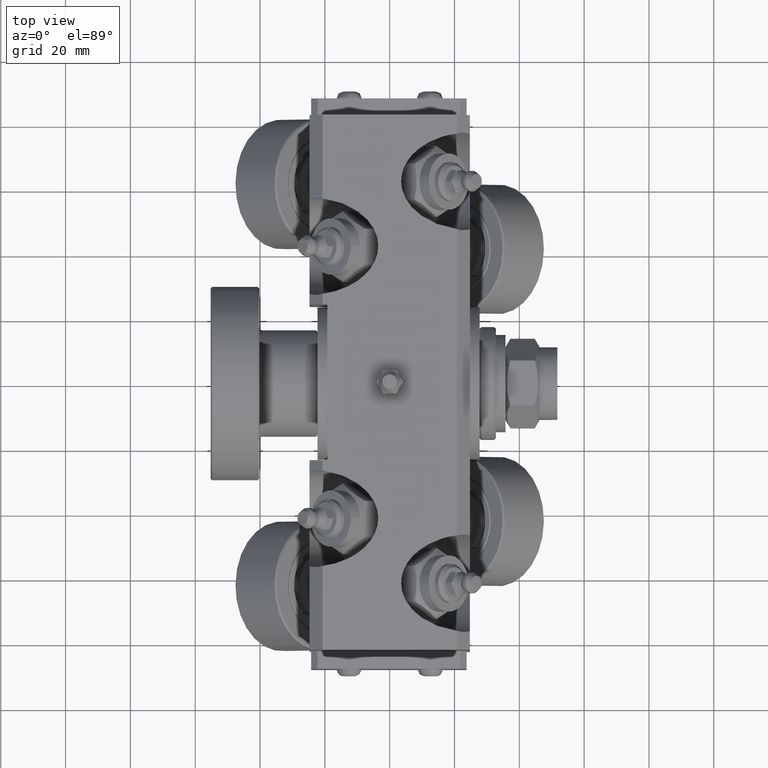
[diagram: clean part render]
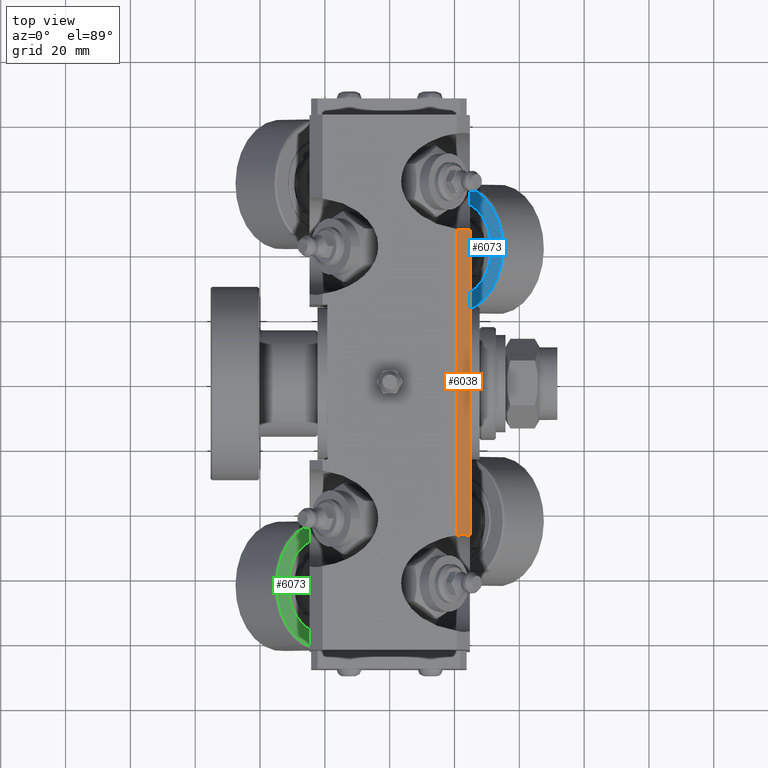
[diagram: same view with three faces highlighted in distinct colors, each labeled with its STEP entity id]
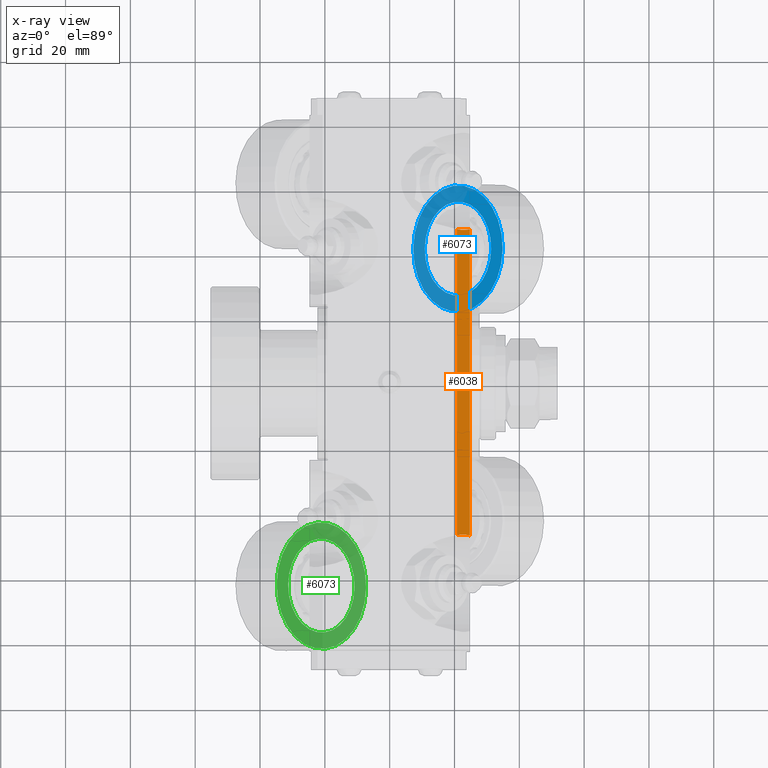
[diagram: x-ray of the same camera — body ghosted, the three highlighted faces saturated]
A machine part, top view with three faces highlighted in distinct colors.
The next image is the same camera in x-ray (body ghosted, the three faces saturated) — at least one of them is partly hidden behind the body in this view.
Their STEP definitions:

[orange] entity #6038 — the highlighted planar face has unit normal (0.7071, 0, 0.7071).
#529=PLANE('',#6890);
#716=FACE_OUTER_BOUND('',#1071,.T.);
#1071=EDGE_LOOP('',(#4478,#4479,#4480,#4481));
#1478=CIRCLE('',#6874,15.);
#1483=CIRCLE('',#6882,15.);
#1965=LINE('',#10443,#2315);
#1974=LINE('',#10480,#2324);
#2315=VECTOR('',#7842,10.);
#2324=VECTOR('',#7883,10.);
#2708=VERTEX_POINT('',#10440);
#2709=VERTEX_POINT('',#10442);
#2714=VERTEX_POINT('',#10455);
#2718=VERTEX_POINT('',#10466);
#3368=EDGE_CURVE('',#2709,#2708,#1965,.T.);
#3375=EDGE_CURVE('',#2708,#2714,#1478,.T.);
#3383=EDGE_CURVE('',#2718,#2709,#1483,.T.);
#3387=EDGE_CURVE('',#2714,#2718,#1974,.T.);
#4478=ORIENTED_EDGE('',*,*,#3375,.T.);
#4479=ORIENTED_EDGE('',*,*,#3387,.T.);
#4480=ORIENTED_EDGE('',*,*,#3383,.T.);
#4481=ORIENTED_EDGE('',*,*,#3368,.T.);
#6038=ADVANCED_FACE('',(#716),#529,.T.);
#6874=AXIS2_PLACEMENT_3D('',#10458,#7856,#7857);
#6882=AXIS2_PLACEMENT_3D('',#10472,#7874,#7875);
#6890=AXIS2_PLACEMENT_3D('',#10490,#7898,#7899);
#7842=DIRECTION('',(0.,-1.,0.));
#7856=DIRECTION('center_axis',(-0.707106781186548,0.,-0.707106781186547));
#7857=DIRECTION('ref_axis',(0.707106781186547,0.,-0.707106781186548));
#7874=DIRECTION('center_axis',(-0.707106781186548,0.,-0.707106781186547));
#7875=DIRECTION('ref_axis',(0.707106781186547,0.,-0.707106781186548));
#7883=DIRECTION('',(0.,1.,0.));
#7898=DIRECTION('center_axis',(0.707106781186548,0.,0.707106781186547));
#7899=DIRECTION('ref_axis',(0.707106781186547,0.,-0.707106781186548));
#10440=CARTESIAN_POINT('',(20.714,-47.2739906288228,24.75));
#10442=CARTESIAN_POINT('',(20.714,47.2739906288227,24.75));
#10443=CARTESIAN_POINT('',(20.714,0.,24.75));
#10455=CARTESIAN_POINT('',(24.75,-47.2739906288228,20.714));
#10458=CARTESIAN_POINT('Origin',(22.732,-62.,22.732));
#10466=CARTESIAN_POINT('',(24.75,47.2739906288228,20.714));
#10472=CARTESIAN_POINT('Origin',(22.732,62.,22.732));
#10480=CARTESIAN_POINT('',(24.75,0.,20.714));
#10490=CARTESIAN_POINT('Origin',(22.732,0.,22.732));

[blue] entity #6073 — the highlighted planar face has unit normal (-0.7071, 0, 0.7071).
#422=FACE_BOUND('',#1115,.T.);
#543=PLANE('',#6965);
#751=FACE_OUTER_BOUND('',#1114,.T.);
#1114=EDGE_LOOP('',(#4635));
#1115=EDGE_LOOP('',(#4636));
#1517=CIRCLE('',#6964,14.5);
#1518=CIRCLE('',#6966,19.5);
#2768=VERTEX_POINT('',#10704);
#2769=VERTEX_POINT('',#10708);
#3465=EDGE_CURVE('',#2768,#2768,#1517,.T.);
#3466=EDGE_CURVE('',#2769,#2769,#1518,.T.);
#4635=ORIENTED_EDGE('',*,*,#3466,.F.);
#4636=ORIENTED_EDGE('',*,*,#3465,.F.);
#6073=ADVANCED_FACE('',(#751,#422),#543,.T.);
#6964=AXIS2_PLACEMENT_3D('',#10706,#8073,#8074);
#6965=AXIS2_PLACEMENT_3D('',#10707,#8075,#8076);
#6966=AXIS2_PLACEMENT_3D('',#10709,#8077,#8078);
#8073=DIRECTION('center_axis',(-1.,0.,0.));
#8074=DIRECTION('ref_axis',(0.,0.,-1.));
#8075=DIRECTION('center_axis',(-1.,0.,0.));
#8076=DIRECTION('ref_axis',(0.,0.,1.));
#8077=DIRECTION('center_axis',(1.,0.,0.));
#8078=DIRECTION('ref_axis',(0.,0.,-1.));
#10704=CARTESIAN_POINT('',(-9.,1.77573785876366E-15,14.5));
#10706=CARTESIAN_POINT('Origin',(-9.,0.,0.));
#10707=CARTESIAN_POINT('Origin',(-9.,0.,14.));
#10708=CARTESIAN_POINT('',(-9.,-2.38806125833734E-15,19.5));
#10709=CARTESIAN_POINT('Origin',(-9.,0.,0.));

[green] entity #6073 — the highlighted planar face has unit normal (0.7071, 0, 0.7071).
#422=FACE_BOUND('',#1115,.T.);
#543=PLANE('',#6965);
#751=FACE_OUTER_BOUND('',#1114,.T.);
#1114=EDGE_LOOP('',(#4635));
#1115=EDGE_LOOP('',(#4636));
#1517=CIRCLE('',#6964,14.5);
#1518=CIRCLE('',#6966,19.5);
#2768=VERTEX_POINT('',#10704);
#2769=VERTEX_POINT('',#10708);
#3465=EDGE_CURVE('',#2768,#2768,#1517,.T.);
#3466=EDGE_CURVE('',#2769,#2769,#1518,.T.);
#4635=ORIENTED_EDGE('',*,*,#3466,.F.);
#4636=ORIENTED_EDGE('',*,*,#3465,.F.);
#6073=ADVANCED_FACE('',(#751,#422),#543,.T.);
#6964=AXIS2_PLACEMENT_3D('',#10706,#8073,#8074);
#6965=AXIS2_PLACEMENT_3D('',#10707,#8075,#8076);
#6966=AXIS2_PLACEMENT_3D('',#10709,#8077,#8078);
#8073=DIRECTION('center_axis',(-1.,0.,0.));
#8074=DIRECTION('ref_axis',(0.,0.,-1.));
#8075=DIRECTION('center_axis',(-1.,0.,0.));
#8076=DIRECTION('ref_axis',(0.,0.,1.));
#8077=DIRECTION('center_axis',(1.,0.,0.));
#8078=DIRECTION('ref_axis',(0.,0.,-1.));
#10704=CARTESIAN_POINT('',(-9.,1.77573785876366E-15,14.5));
#10706=CARTESIAN_POINT('Origin',(-9.,0.,0.));
#10707=CARTESIAN_POINT('Origin',(-9.,0.,14.));
#10708=CARTESIAN_POINT('',(-9.,-2.38806125833734E-15,19.5));
#10709=CARTESIAN_POINT('Origin',(-9.,0.,0.));